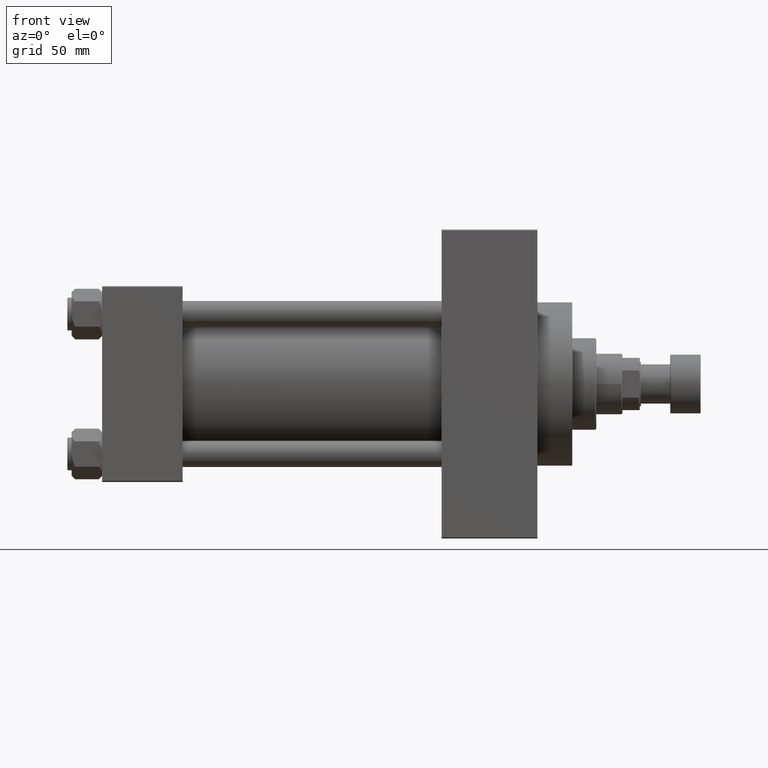
[diagram: clean part render]
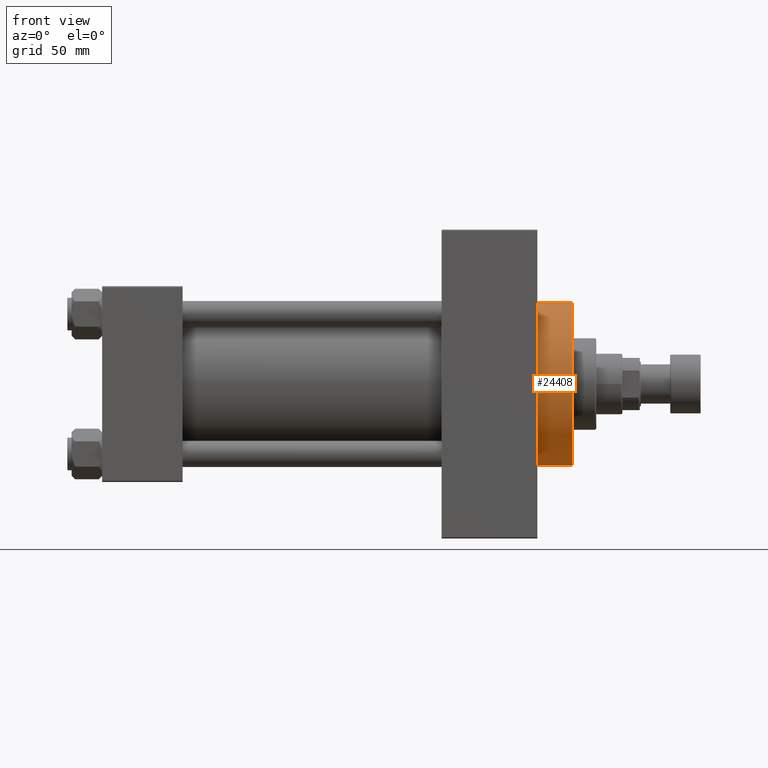
[diagram: same view with one face highlighted and labeled with its STEP entity id]
A machine part, front view. The second image highlights one B-rep face of the part: STEP entity #24408.
In plain terms, the highlighted cylindrical surface (partial cylindrical patch) has radius 37.5 mm, axis along (-1, -0, -0).
Its self-contained STEP definition (entity closure, byte-faithful):
#2887 = EDGE_CURVE ( 'NONE', #18485, #15352, #10815, .T. ) ;
#4682 = EDGE_CURVE ( 'NONE', #18485, #14339, #34298, .T. ) ;
#6403 = CYLINDRICAL_SURFACE ( 'NONE', #7501, 37.50000000000000711 ) ;
#7501 = AXIS2_PLACEMENT_3D ( 'NONE', #13886, #38937, #21118 ) ;
#8575 = AXIS2_PLACEMENT_3D ( 'NONE', #16164, #27688, #38769 ) ;
#9263 = VECTOR ( 'NONE', #38591, 1000.000000000000000 ) ;
#10815 = CIRCLE ( 'NONE', #37735, 37.50000000000000711 ) ;
#10876 = CIRCLE ( 'NONE', #8575, 37.50000000000000711 ) ;
#12535 = DIRECTION ( 'NONE',  ( 1.000000000000000000, 0.000000000000000000, 0.000000000000000000 ) ) ;
#13334 = VERTEX_POINT ( 'NONE', #23892 ) ;
#13415 = FACE_OUTER_BOUND ( 'NONE', #21917, .T. ) ;
#13556 = ORIENTED_EDGE ( 'NONE', *, *, #45230, .T. ) ;
#13886 = CARTESIAN_POINT ( 'NONE',  ( 216.0000000000000284, 0.000000000000000000, 0.000000000000000000 ) ) ;
#14339 = VERTEX_POINT ( 'NONE', #37878 ) ;
#15352 = VERTEX_POINT ( 'NONE', #28529 ) ;
#15460 = VECTOR ( 'NONE', #26113, 1000.000000000000000 ) ;
#16164 = CARTESIAN_POINT ( 'NONE',  ( 200.0000000000000000, 0.000000000000000000, 0.000000000000000000 ) ) ;
#17172 = CARTESIAN_POINT ( 'NONE',  ( 216.0000000000000284, 4.592425496802575156E-15, -37.50000000000000711 ) ) ;
#17194 = CARTESIAN_POINT ( 'NONE',  ( 216.0000000000000284, 0.000000000000000000, 37.50000000000000711 ) ) ;
#18485 = VERTEX_POINT ( 'NONE', #17194 ) ;
#20002 = CARTESIAN_POINT ( 'NONE',  ( 216.0000000000000284, 0.000000000000000000, 0.000000000000000000 ) ) ;
#21118 = DIRECTION ( 'NONE',  ( 0.000000000000000000, 0.000000000000000000, 1.000000000000000000 ) ) ;
#21917 = EDGE_LOOP ( 'NONE', ( #35437, #43874, #26875, #13556 ) ) ;
#23892 = CARTESIAN_POINT ( 'NONE',  ( 200.0000000000000000, 4.592425496802575156E-15, -37.50000000000000711 ) ) ;
#24408 = ADVANCED_FACE ( 'NONE', ( #13415 ), #6403, .T. ) ;
#26113 = DIRECTION ( 'NONE',  ( -1.000000000000000000, -0.000000000000000000, -0.000000000000000000 ) ) ;
#26875 = ORIENTED_EDGE ( 'NONE', *, *, #4682, .T. ) ;
#27688 = DIRECTION ( 'NONE',  ( 1.000000000000000000, 0.000000000000000000, 0.000000000000000000 ) ) ;
#28529 = CARTESIAN_POINT ( 'NONE',  ( 216.0000000000000284, 4.592425496802575156E-15, -37.50000000000000711 ) ) ;
#31314 = DIRECTION ( 'NONE',  ( 0.000000000000000000, 0.000000000000000000, -1.000000000000000000 ) ) ;
#34298 = LINE ( 'NONE', #44901, #15460 ) ;
#35437 = ORIENTED_EDGE ( 'NONE', *, *, #37830, .F. ) ;
#37735 = AXIS2_PLACEMENT_3D ( 'NONE', #20002, #12535, #31314 ) ;
#37830 = EDGE_CURVE ( 'NONE', #15352, #13334, #39312, .T. ) ;
#37878 = CARTESIAN_POINT ( 'NONE',  ( 200.0000000000000000, 0.000000000000000000, 37.50000000000000711 ) ) ;
#38591 = DIRECTION ( 'NONE',  ( -1.000000000000000000, -0.000000000000000000, -0.000000000000000000 ) ) ;
#38769 = DIRECTION ( 'NONE',  ( 0.000000000000000000, 0.000000000000000000, -1.000000000000000000 ) ) ;
#38937 = DIRECTION ( 'NONE',  ( -1.000000000000000000, -0.000000000000000000, -0.000000000000000000 ) ) ;
#39312 = LINE ( 'NONE', #17172, #9263 ) ;
#43874 = ORIENTED_EDGE ( 'NONE', *, *, #2887, .F. ) ;
#44901 = CARTESIAN_POINT ( 'NONE',  ( 216.0000000000000284, 0.000000000000000000, 37.50000000000000711 ) ) ;
#45230 = EDGE_CURVE ( 'NONE', #14339, #13334, #10876, .T. ) ;